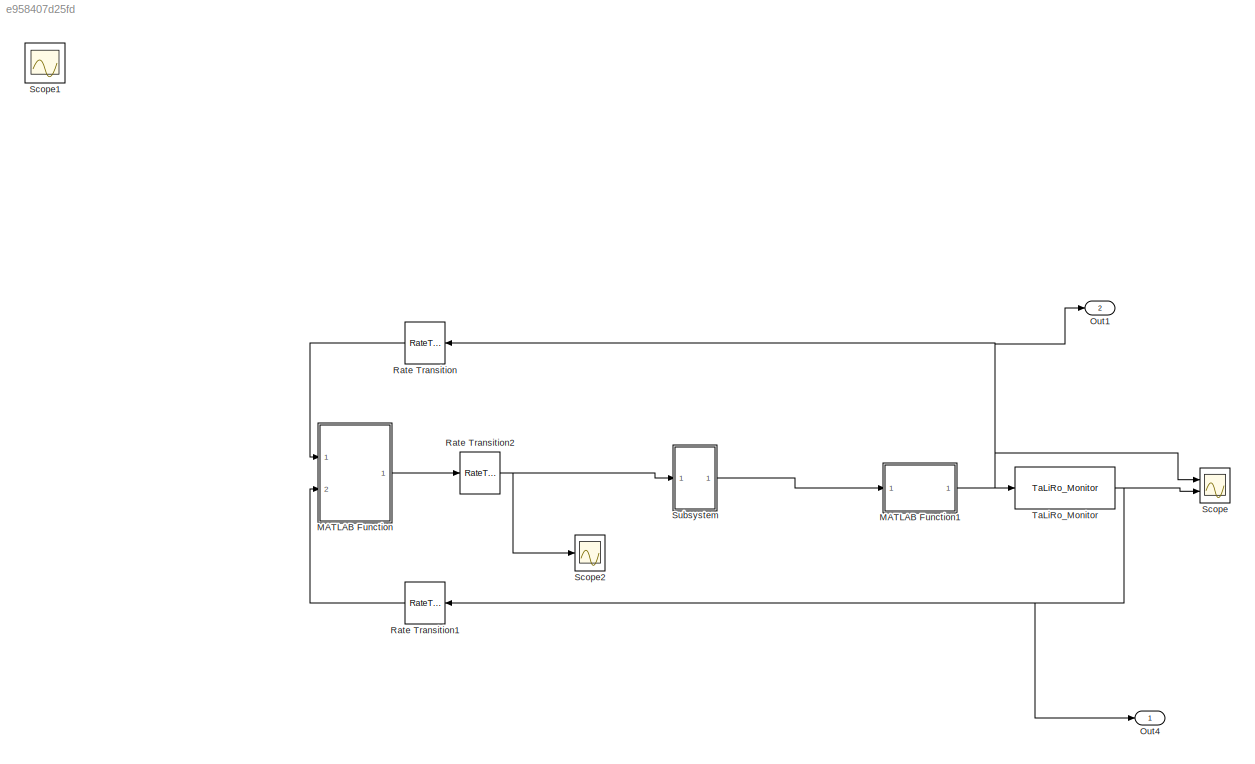
MODEL slx_e958407d25fd
KIND model
CONFIG AbsTol = 1e-6
CONFIG EnableMultiTasking = off
CONFIG FixedStep = 0.04
CONFIG MaxStep = auto
CONFIG MinStep = auto
CONFIG RelTol = 1e-3
CONFIG SampleTimeConstraint = Unconstrained
CONFIG Solver = ode5
CONFIG SolverName = ode5
CONFIG StartTime = 0.0
CONFIG StopTime = 100
WORKSPACE source: MATLAB code (in-file)
WORKSPACE code: load sldemo_autotrans_data; %load initial conditions and other necessary data
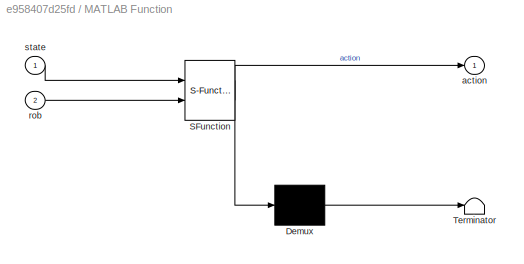
BLOCK [SubSystem] MATLAB Function
  ErrorFcn = Stateflow.Translate.translate
  PermitHierarchicalResolution = ExplicitOnly
  Ports = [2, 1]
  RequestExecContextInheritance = off
  SFBlockType = MATLAB Function
  SystemSampleTime = 5
  TreatAsAtomicUnit = on
BLOCK [Demux] MATLAB Function/ Demux 
  Outputs = 1
  Ports = [1, 1]
BLOCK [S-Function] MATLAB Function/ SFunction 
  EnableBusSupport = on
  FunctionName = sf_sfun
  PortCounts = [2 2]
  Ports = [2, 2]
  SFcnIsStateOwnerBlock = off
  SFunctionDeploymentMode = off
  Tag = Stateflow S-Function falsification 2
BLOCK [Terminator] MATLAB Function/ Terminator 
BLOCK [Outport] MATLAB Function/action
  IconDisplay = Port number
BLOCK [Inport] MATLAB Function/rob
  IconDisplay = Port number
  Port = 2
BLOCK [Inport] MATLAB Function/state
  IconDisplay = Port number
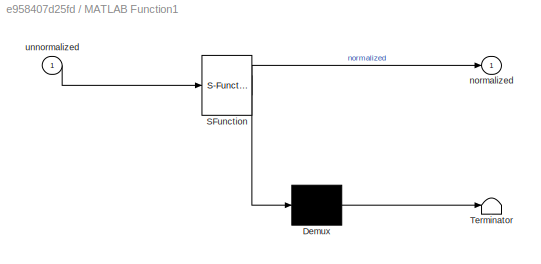
BLOCK [SubSystem] MATLAB Function1
  ErrorFcn = Stateflow.Translate.translate
  PermitHierarchicalResolution = ExplicitOnly
  Ports = [1, 1]
  RequestExecContextInheritance = off
  SFBlockType = MATLAB Function
  TreatAsAtomicUnit = on
BLOCK [Demux] MATLAB Function1/ Demux 
  Outputs = 1
  Ports = [1, 1]
BLOCK [S-Function] MATLAB Function1/ SFunction 
  EnableBusSupport = on
  FunctionName = sf_sfun
  PortCounts = [1 2]
  Ports = [1, 2]
  SFcnIsStateOwnerBlock = off
  SFunctionDeploymentMode = off
  Tag = Stateflow S-Function falsification 1
BLOCK [Terminator] MATLAB Function1/ Terminator 
BLOCK [Outport] MATLAB Function1/normalized
  IconDisplay = Port number
BLOCK [Inport] MATLAB Function1/unnormalized
  IconDisplay = Port number
BLOCK [Outport] Out1
  IconDisplay = Port number
  Port = 2
  SampleTime = 0.04
BLOCK [Outport] Out4
  IconDisplay = Port number
BLOCK [RateTransition] Rate Transition
  OutPortSampleTimeOpt = Inherit
BLOCK [RateTransition] Rate Transition1
  InitialCondition = 1.5
  OutPortSampleTimeOpt = Inherit
BLOCK [RateTransition] Rate Transition2
  InitialCondition = [40,30,200,40,200,40,35,200,45,0]
  OutPortSampleTimeOpt = Inherit
BLOCK [Scope] Scope
  Floating = off
  NumInputPorts = 2
  Ports = [2]
  ScopeSpecificationString = Simulink.scopes.TimeScopeBlockCfg('CurrentConfiguration', extmgr.ConfigurationSet(extmgr.Configuration('Core','General UI',true),extmgr.Configuration('Core','Source UI',true),extmgr.Configuration('Sources','WiredSimulink',true,'DataLoggingVariableName','ScopeData1'),extmgr.Configuration('Visuals','Time Domain',true,'SerializedDisplays',{struct('MinYLimReal','-1.3335','MaxYLimReal','2.0015','YLabel...<+1382ch>
BLOCK [Scope] Scope1
  Floating = off
  IOType = viewer
  NumInputPorts = 1
  Ports = []
  ScopeSpecificationString = Simulink.scopes.TimeScopeBlockCfg('CurrentConfiguration', extmgr.ConfigurationSet(extmgr.Configuration('Core','General UI',true),extmgr.Configuration('Core','Source UI',true),extmgr.Configuration('Sources','WiredSimulink',true,'DataLoggingMaxPoints','7500','DataLoggingLimitDataPoints',true,'DataLoggingSaveFormat','Array','DataLoggingDecimation','1','DataLoggingDecimateData',true),extmgr.Configurat...<+1681ch>
BLOCK [Scope] Scope2
  Floating = off
  NumInputPorts = 1
  Ports = [1]
  ScopeSpecificationString = Simulink.scopes.TimeScopeBlockCfg('CurrentConfiguration', extmgr.ConfigurationSet(extmgr.Configuration('Core','General UI',true),extmgr.Configuration('Core','Source UI',true),extmgr.Configuration('Sources','WiredSimulink',true,'DataLoggingVariableName','ScopeData1'),extmgr.Configuration('Visuals','Time Domain',true,'SerializedDisplays',{struct('MinYLimReal','-31.25','MaxYLimReal','281.25','YLabelR...<+1380ch>
BLOCK [ModelReference] Subsystem
  ModelNameDialog = insulinGlucoseSimHumanCtrl
  ModelReferenceVersion = 1.338
  Ports = [1, 1]
BLOCK [Reference] TaLiRo_Monitor  REF=S_TaLiRo/TaLiRo_Monitor
  Ports = [1, 1]
  SourceBlock = S_TaLiRo/TaLiRo_Monitor
  SourceProductName = S-TaLiRo
  SourceType = Parameters
NET MATLAB Function1:1 -> Out1:1, Rate Transition:1, Scope:1, TaLiRo_Monitor:1
LINE MATLAB Function:1 -> Rate Transition2:1
LINE Rate Transition1:1 -> MATLAB Function:2
NET Rate Transition2:1 -> Scope2:1, Subsystem:1
LINE Rate Transition:1 -> MATLAB Function:1
LINE Subsystem:1 -> MATLAB Function1:1
NET TaLiRo_Monitor:1 -> Out4:1, Rate Transition1:1, Scope:2
note: NET lines group one-source signal fan-out (src -> all destinations, sorted); 1:1 wires keep LINE
CHART MATLAB Function1 states=1 transitions=1
  STATE_LABEL 'eML_blk_kernel()'
  STATE_LABEL "SCRIPT:\nfunction normalized = normalize(unnormalized)\ncoder.extrinsic('evalin')\noutput_range = [0 0; 0 0; 0 0];\noutput_range = evalin('base', 'output_range');\nlower = output_range(:,1);\nupper = output_range(:,2);\nmiddle = (lower + upper)/2;\nd = (upper - lower)/2;\nnormalized = (unnormalized - middle) ./ d;\n"
CHART MATLAB Function states=1 transitions=1
  STATE_LABEL 'eML_blk_kernel()'
  STATE_LABEL "SCRIPT:\nfunction action  = driver(state, rob)\ncoder.extrinsic('py.driver.driver', 'evalin')\n%#codegen\nagent = evalin('base', 'agent');\naction_normalized = [0 0 0 0 0 0 0 0 0 0];\ninput_range = [0 0;0 0;0 0;0 0;0 0;0 0;0 0;0 0;0 0;0 0;];\ninput_range = evalin('base', 'input_range');\naction_normalized = double(py.driver.driver(agent, state', rob(1)));\naction_normalized = transpose(min([1 1 1 1 1 1 1 1...<+204ch>"
